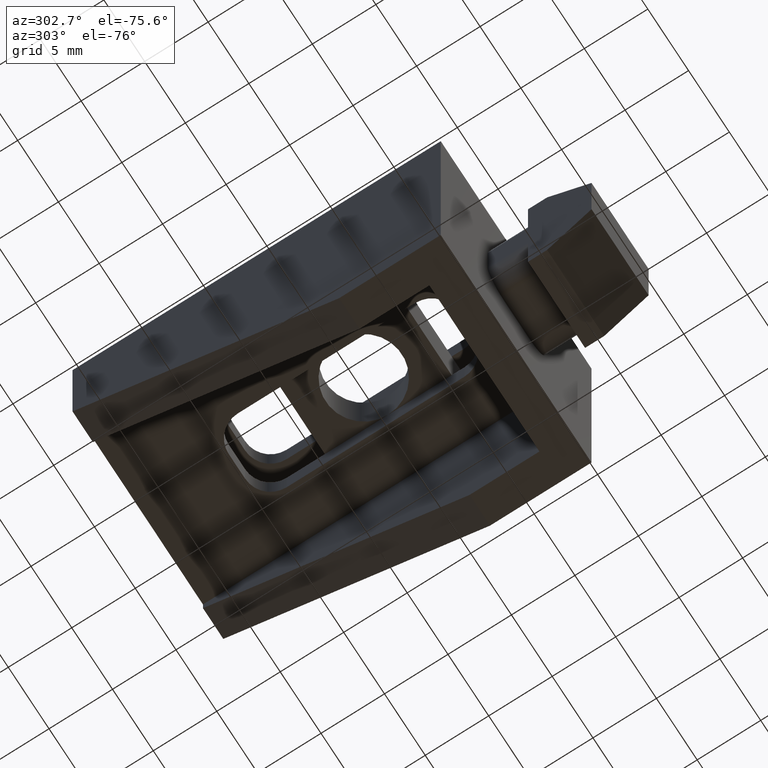
[diagram: clean part render]
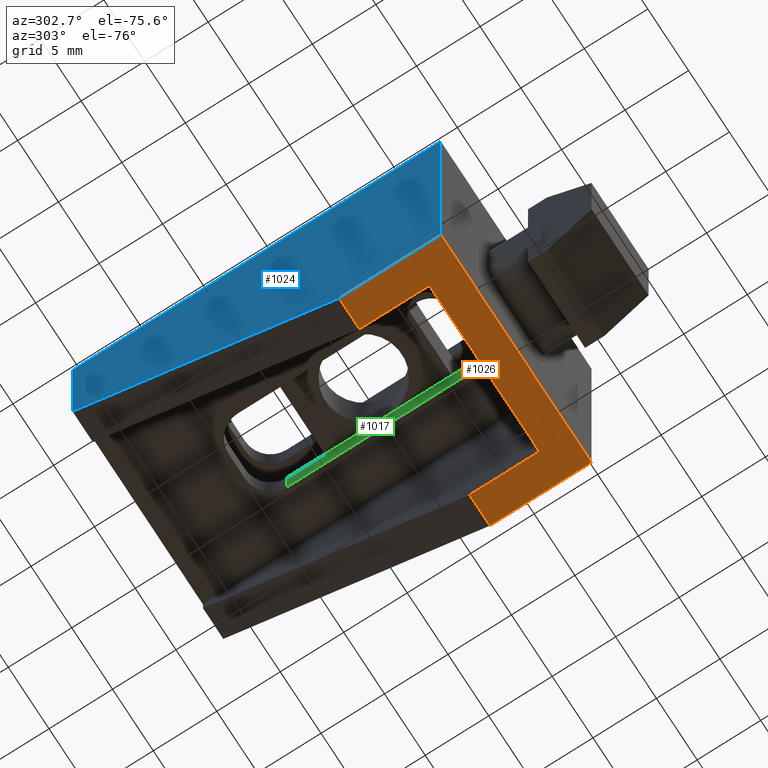
[diagram: same view with three faces highlighted in distinct colors, each labeled with its STEP entity id]
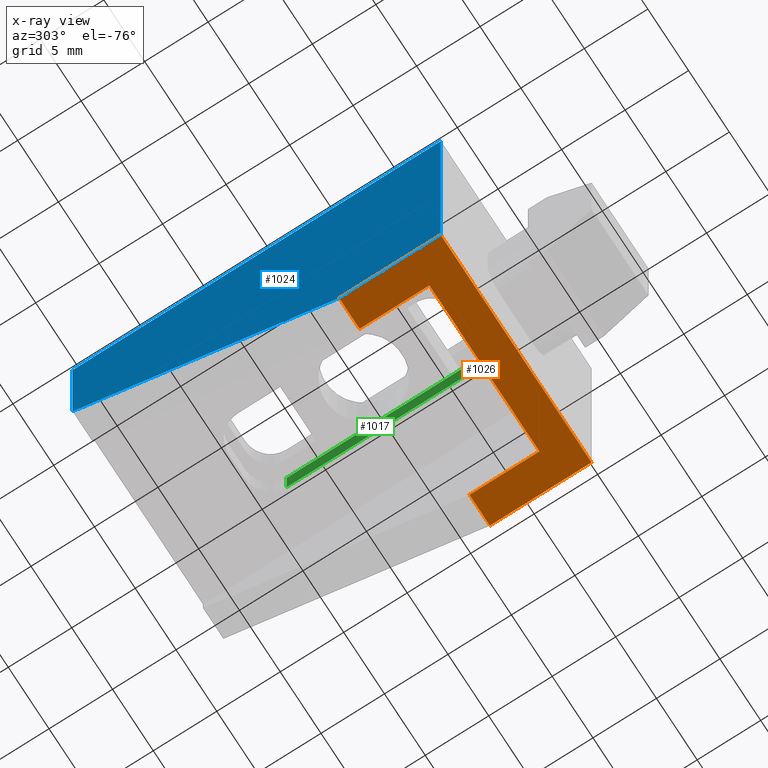
[diagram: x-ray of the same camera — body ghosted, the three highlighted faces saturated]
A machine part, auxiliary view with three faces highlighted in distinct colors.
The next image is the same camera in x-ray (body ghosted, the three faces saturated) — at least one of them is partly hidden behind the body in this view.
Their STEP definitions:

[orange] entity #1026 — the highlighted planar face has unit normal (0, 0, 1).
#44=LINE('',#1516,#164);
#50=LINE('',#1529,#170);
#59=LINE('',#1555,#179);
#60=LINE('',#1556,#180);
#61=LINE('',#1557,#181);
#62=LINE('',#1559,#182);
#63=LINE('',#1561,#183);
#64=LINE('',#1562,#184);
#164=VECTOR('',#1230,8.00000000000188);
#170=VECTOR('',#1238,8.00000000000188);
#179=VECTOR('',#1259,5.50000651895567);
#180=VECTOR('',#1260,2.5);
#181=VECTOR('',#1261,18.5);
#182=VECTOR('',#1262,2.5);
#183=VECTOR('',#1263,5.50000651895567);
#184=VECTOR('',#1264,13.5);
#268=PLANE('',#1098);
#332=FACE_OUTER_BOUND('',#391,.T.);
#391=EDGE_LOOP('',(#785,#786,#787,#788,#789,#790,#791,#792));
#486=VERTEX_POINT('',#1513);
#487=VERTEX_POINT('',#1515);
#492=VERTEX_POINT('',#1526);
#493=VERTEX_POINT('',#1528);
#503=VERTEX_POINT('',#1553);
#504=VERTEX_POINT('',#1554);
#505=VERTEX_POINT('',#1558);
#506=VERTEX_POINT('',#1560);
#596=EDGE_CURVE('',#486,#487,#44,.T.);
#602=EDGE_CURVE('',#492,#493,#50,.T.);
#615=EDGE_CURVE('',#503,#504,#59,.T.);
#616=EDGE_CURVE('',#487,#503,#60,.T.);
#617=EDGE_CURVE('',#493,#486,#61,.T.);
#618=EDGE_CURVE('',#505,#492,#62,.T.);
#619=EDGE_CURVE('',#505,#506,#63,.T.);
#620=EDGE_CURVE('',#504,#506,#64,.T.);
#785=ORIENTED_EDGE('',*,*,#615,.F.);
#786=ORIENTED_EDGE('',*,*,#616,.F.);
#787=ORIENTED_EDGE('',*,*,#596,.F.);
#788=ORIENTED_EDGE('',*,*,#617,.F.);
#789=ORIENTED_EDGE('',*,*,#602,.F.);
#790=ORIENTED_EDGE('',*,*,#618,.F.);
#791=ORIENTED_EDGE('',*,*,#619,.T.);
#792=ORIENTED_EDGE('',*,*,#620,.F.);
#1026=ADVANCED_FACE('',(#332),#268,.F.);
#1098=AXIS2_PLACEMENT_3D('',#1552,#1257,#1258);
#1230=DIRECTION('',(0.,1.,0.));
#1238=DIRECTION('',(0.,-1.,0.));
#1257=DIRECTION('center_axis',(0.,0.,1.));
#1258=DIRECTION('ref_axis',(1.,0.,0.));
#1259=DIRECTION('',(0.,-1.,0.));
#1260=DIRECTION('',(-1.,0.,0.));
#1261=DIRECTION('',(1.,0.,0.));
#1262=DIRECTION('',(-1.,0.,0.));
#1263=DIRECTION('',(0.,-1.,0.));
#1264=DIRECTION('',(-1.,0.,0.));
#1513=CARTESIAN_POINT('',(9.25,0.,-16.));
#1515=CARTESIAN_POINT('',(9.25,8.00000000000188,-16.));
#1516=CARTESIAN_POINT('',(9.25,0.,-16.));
#1526=CARTESIAN_POINT('',(-9.25,8.00000000000188,-16.));
#1528=CARTESIAN_POINT('',(-9.25,0.,-16.));
#1529=CARTESIAN_POINT('',(-9.25,8.00000000000188,-16.));
#1552=CARTESIAN_POINT('Origin',(-11.1001200009118,-2.90012000095697,-16.));
#1553=CARTESIAN_POINT('',(6.75,8.00000000000188,-16.));
#1554=CARTESIAN_POINT('',(6.75,2.4999934810462,-16.));
#1555=CARTESIAN_POINT('',(6.75,8.00000000000188,-16.));
#1556=CARTESIAN_POINT('',(9.25,8.00000000000188,-16.));
#1557=CARTESIAN_POINT('',(-9.25,0.,-16.));
#1558=CARTESIAN_POINT('',(-6.75,8.00000000000188,-16.));
#1559=CARTESIAN_POINT('',(-6.75,8.00000000000188,-16.));
#1560=CARTESIAN_POINT('',(-6.75,2.4999934810462,-16.));
#1561=CARTESIAN_POINT('',(-6.75,8.00000000000188,-16.));
#1562=CARTESIAN_POINT('',(6.75,2.4999934810462,-16.));

[blue] entity #1024 — the highlighted planar face has unit normal (1, 0, 0).
#48=LINE('',#1525,#168);
#49=LINE('',#1527,#169);
#50=LINE('',#1529,#170);
#51=LINE('',#1531,#171);
#52=LINE('',#1532,#172);
#168=VECTOR('',#1236,11.);
#169=VECTOR('',#1237,25.2388589282464);
#170=VECTOR('',#1238,8.00000000000188);
#171=VECTOR('',#1239,25.);
#172=VECTOR('',#1240,29.);
#266=PLANE('',#1092);
#330=FACE_OUTER_BOUND('',#388,.T.);
#388=EDGE_LOOP('',(#768,#769,#770,#771,#772));
#490=VERTEX_POINT('',#1523);
#491=VERTEX_POINT('',#1524);
#492=VERTEX_POINT('',#1526);
#493=VERTEX_POINT('',#1528);
#494=VERTEX_POINT('',#1530);
#600=EDGE_CURVE('',#490,#491,#48,.T.);
#601=EDGE_CURVE('',#491,#492,#49,.T.);
#602=EDGE_CURVE('',#492,#493,#50,.T.);
#603=EDGE_CURVE('',#494,#493,#51,.T.);
#604=EDGE_CURVE('',#490,#494,#52,.T.);
#768=ORIENTED_EDGE('',*,*,#600,.T.);
#769=ORIENTED_EDGE('',*,*,#601,.T.);
#770=ORIENTED_EDGE('',*,*,#602,.T.);
#771=ORIENTED_EDGE('',*,*,#603,.F.);
#772=ORIENTED_EDGE('',*,*,#604,.F.);
#1024=ADVANCED_FACE('',(#330),#266,.F.);
#1092=AXIS2_PLACEMENT_3D('',#1522,#1234,#1235);
#1234=DIRECTION('center_axis',(1.,0.,0.));
#1235=DIRECTION('ref_axis',(0.,0.,-1.));
#1236=DIRECTION('',(0.,0.,-1.));
#1237=DIRECTION('',(0.,-0.83205029433782,-0.554700196225265));
#1238=DIRECTION('',(0.,-1.,0.));
#1239=DIRECTION('',(0.,0.,-1.));
#1240=DIRECTION('',(0.,-1.,0.));
#1522=CARTESIAN_POINT('Origin',(-9.25,29.,9.));
#1523=CARTESIAN_POINT('',(-9.25,29.,9.));
#1524=CARTESIAN_POINT('',(-9.25,29.,-1.99999999999995));
#1525=CARTESIAN_POINT('',(-9.25,29.,9.));
#1526=CARTESIAN_POINT('',(-9.25,8.00000000000188,-16.));
#1527=CARTESIAN_POINT('',(-9.25,29.,-1.99999999999995));
#1528=CARTESIAN_POINT('',(-9.25,0.,-16.));
#1529=CARTESIAN_POINT('',(-9.25,8.00000000000188,-16.));
#1530=CARTESIAN_POINT('',(-9.25,0.,9.));
#1531=CARTESIAN_POINT('',(-9.25,0.,9.));
#1532=CARTESIAN_POINT('',(-9.25,29.,9.));

[green] entity #1017 — the highlighted planar face has unit normal (1, 0, 0).
#28=LINE('',#1471,#148);
#32=LINE('',#1480,#152);
#33=LINE('',#1482,#153);
#34=LINE('',#1483,#154);
#148=VECTOR('',#1186,2.5);
#152=VECTOR('',#1194,13.9999999999995);
#153=VECTOR('',#1195,13.9999999999995);
#154=VECTOR('',#1196,2.5);
#262=PLANE('',#1079);
#323=FACE_OUTER_BOUND('',#381,.T.);
#381=EDGE_LOOP('',(#739,#740,#741,#742));
#470=VERTEX_POINT('',#1465);
#472=VERTEX_POINT('',#1469);
#475=VERTEX_POINT('',#1479);
#476=VERTEX_POINT('',#1481);
#574=EDGE_CURVE('',#472,#470,#28,.T.);
#578=EDGE_CURVE('',#470,#475,#32,.T.);
#579=EDGE_CURVE('',#476,#472,#33,.T.);
#580=EDGE_CURVE('',#476,#475,#34,.T.);
#739=ORIENTED_EDGE('',*,*,#578,.F.);
#740=ORIENTED_EDGE('',*,*,#574,.F.);
#741=ORIENTED_EDGE('',*,*,#579,.F.);
#742=ORIENTED_EDGE('',*,*,#580,.T.);
#1017=ADVANCED_FACE('',(#323),#262,.F.);
#1079=AXIS2_PLACEMENT_3D('',#1478,#1192,#1193);
#1186=DIRECTION('',(0.,0.,1.));
#1192=DIRECTION('center_axis',(1.,0.,0.));
#1193=DIRECTION('ref_axis',(0.,1.,0.));
#1194=DIRECTION('',(0.,-1.,0.));
#1195=DIRECTION('',(0.,1.,0.));
#1196=DIRECTION('',(0.,0.,1.));
#1465=CARTESIAN_POINT('',(3.00000000000364,20.,1.50000000000003));
#1469=CARTESIAN_POINT('',(3.00000000000364,20.,-0.999999999999972));
#1471=CARTESIAN_POINT('',(3.00000000000364,20.,-0.999999999999972));
#1478=CARTESIAN_POINT('Origin',(3.00000000000364,6.00000000000051,-0.999999999999972));
#1479=CARTESIAN_POINT('',(3.00000000000364,6.00000000000051,1.50000000000003));
#1480=CARTESIAN_POINT('',(3.00000000000364,17.5000000000003,1.50000000000003));
#1481=CARTESIAN_POINT('',(3.00000000000364,6.00000000000051,-0.999999999999972));
#1482=CARTESIAN_POINT('',(3.00000000000364,17.5000000000003,-0.999999999999972));
#1483=CARTESIAN_POINT('',(3.00000000000364,6.00000000000051,-0.999999999999972));